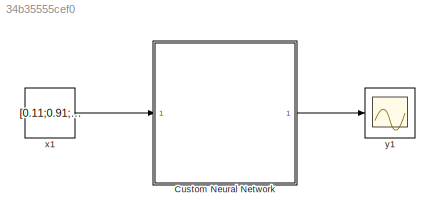
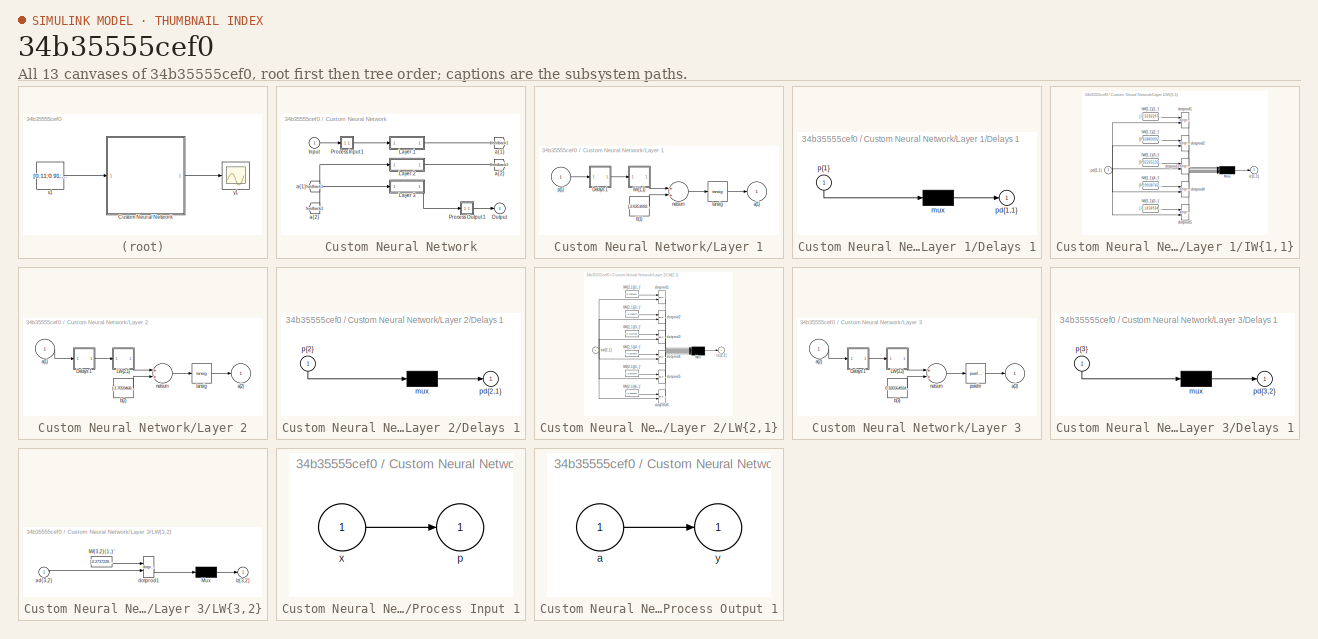
[diagram: thumbnail index - all 13 canvases of the model, root first then tree order]
MODEL slx_34b35555cef0
KIND model
CONFIG AbsTol = auto
CONFIG EnableMultiTasking = off
CONFIG FixedStep = auto
CONFIG MaxStep = auto
CONFIG MinStep = auto
CONFIG RelTol = 1e-3
CONFIG SampleTimeConstraint = Unconstrained
CONFIG Solver = VariableStepAuto
CONFIG SolverName = VariableStepAuto
CONFIG StartTime = 0.0
CONFIG StopTime = 10.0
BLOCK [SubSystem] Custom Neural Network
  Ports = [1, 1]
  RequestExecContextInheritance = off
  Variant = off
BLOCK [From] Custom Neural Network/ a{1} 
  GotoTag = feedback1
BLOCK [From] Custom Neural Network/ a{2} 
  GotoTag = feedback2
BLOCK [Inport] Custom Neural Network/Input
  IconDisplay = Port number
  PortDimensions = 6
BLOCK [SubSystem] Custom Neural Network/Layer 1
  Ports = [1, 1]
  RequestExecContextInheritance = off
  Variant = off
BLOCK [SubSystem] Custom Neural Network/Layer 1/Delays 1
  Ports = [1, 1]
  RequestExecContextInheritance = off
  Variant = off
BLOCK [Mux] Custom Neural Network/Layer 1/Delays 1/mux
  Inputs = 1
  Ports = [1, 1]
BLOCK [Outport] Custom Neural Network/Layer 1/Delays 1/pd{1,1}
  IconDisplay = Port number
BLOCK [Inport] Custom Neural Network/Layer 1/Delays 1/p{1}
  IconDisplay = Port number
  PortDimensions = 6
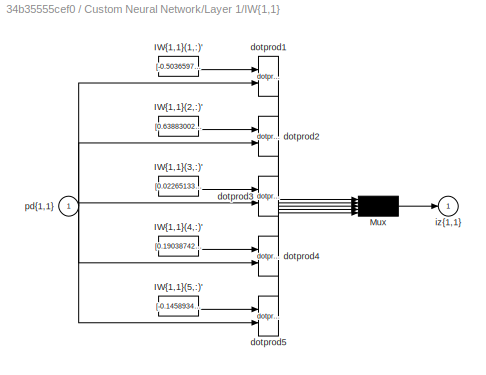
BLOCK [SubSystem] Custom Neural Network/Layer 1/IW{1,1}
  Ports = [1, 1]
  RequestExecContextInheritance = off
  Variant = off
BLOCK [Constant] Custom Neural Network/Layer 1/IW{1,1}/IW{1,1}(1,:)'
  Value = [-0.50365973031085708999654571016435511410236358642578125;-0.44861014762617223983198755377088673412799835205078125;-0.059355002935292507093567593301486340351402759552001953125;-0.65536268808816167119601914237136952579021453857421875;-0.014143780430035036987934660146493115462362766265869140625;0.7755281574015084888884530300856567919254302978515625]
BLOCK [Constant] Custom Neural Network/Layer 1/IW{1,1}/IW{1,1}(2,:)'
  Value = [0.63883002069801142486227263361797668039798736572265625;-0.416594461391983805764738235666300170123577117919921875;0.64442650384055000234440058193285949528217315673828125;2.171473302904118884981699011404998600482940673828125;0.57519324243376368510638485531671904027462005615234375;-2.780406223153573108675118419341742992401123046875]
BLOCK [Constant] Custom Neural Network/Layer 1/IW{1,1}/IW{1,1}(3,:)'
  Value = [0.022651336032712236778774439471817458979785442352294921875;0.18566070331072548338369188059004954993724822998046875;-0.11810670789982935513506845381925813853740692138671875;-3.13486104239137031157724777585826814174652099609375;5.53181866500369334715969671378843486309051513671875;-2.3993127850799407241311200778000056743621826171875]
BLOCK [Constant] Custom Neural Network/Layer 1/IW{1,1}/IW{1,1}(4,:)'
  Value = [0.1903874231777750447580643822220736183226108551025390625;0.82290543120227521711740337195806205272674560546875;-0.7692451539500242407854102566489018499851226806640625;3.0007304033344635030289282440207898616790771484375;-1.5737118742244522451301236287690699100494384765625;-1.453302964879054304248029438895173370838165283203125]
BLOCK [Constant] Custom Neural Network/Layer 1/IW{1,1}/IW{1,1}(5,:)'
  Value = [-0.1458934743004197398530408236183575354516506195068359375;-0.32857669610947082272645047851256094872951507568359375;-0.77789414662125844213136360849603079259395599365234375;1.966635708417143302284557648818008601665496826171875;0.2037568682339259973357314947861596010625362396240234375;-2.126583407465877595399206256843172013759613037109375]
BLOCK [Mux] Custom Neural Network/Layer 1/IW{1,1}/Mux
  Inputs = 5
  Ports = [5, 1]
BLOCK [Reference] Custom Neural Network/Layer 1/IW{1,1}/dotprod1  REF=neural/Weight Functions/dotprod
  Ports = [2, 1]
  SourceBlock = neural/Weight Functions/dotprod
  SourceProductBaseCode = NN
  SourceProductName = Neural Network Toolbox
  SourceType = DOTPROD
BLOCK [Reference] Custom Neural Network/Layer 1/IW{1,1}/dotprod2  REF=neural/Weight Functions/dotprod
  Ports = [2, 1]
  SourceBlock = neural/Weight Functions/dotprod
  SourceProductBaseCode = NN
  SourceProductName = Neural Network Toolbox
  SourceType = DOTPROD
BLOCK [Reference] Custom Neural Network/Layer 1/IW{1,1}/dotprod3  REF=neural/Weight Functions/dotprod
  Ports = [2, 1]
  SourceBlock = neural/Weight Functions/dotprod
  SourceProductBaseCode = NN
  SourceProductName = Neural Network Toolbox
  SourceType = DOTPROD
BLOCK [Reference] Custom Neural Network/Layer 1/IW{1,1}/dotprod4  REF=neural/Weight Functions/dotprod
  Ports = [2, 1]
  SourceBlock = neural/Weight Functions/dotprod
  SourceProductBaseCode = NN
  SourceProductName = Neural Network Toolbox
  SourceType = DOTPROD
BLOCK [Reference] Custom Neural Network/Layer 1/IW{1,1}/dotprod5  REF=neural/Weight Functions/dotprod
  Ports = [2, 1]
  SourceBlock = neural/Weight Functions/dotprod
  SourceProductBaseCode = NN
  SourceProductName = Neural Network Toolbox
  SourceType = DOTPROD
BLOCK [Outport] Custom Neural Network/Layer 1/IW{1,1}/iz{1,1}
  IconDisplay = Port number
BLOCK [Inport] Custom Neural Network/Layer 1/IW{1,1}/pd{1,1}
  IconDisplay = Port number
  PortDimensions = 6
BLOCK [Outport] Custom Neural Network/Layer 1/a{1}
  IconDisplay = Port number
  InitialOutput = [0;0;0;0;0]
BLOCK [Constant] Custom Neural Network/Layer 1/b{1}
  Value = [-2.635169255257659326474595218314789235591888427734375;-1.3710827763500590403822343432693742215633392333984375;0.137893074750585042931305679303477518260478973388671875;-0.524288182582832273936901401611976325511932373046875;1.744469183714269622242909463238902390003204345703125]
BLOCK [Sum] Custom Neural Network/Layer 1/netsum
  Inputs = 2
  Ports = [2, 1]
BLOCK [Inport] Custom Neural Network/Layer 1/p{1}
  IconDisplay = Port number
  PortDimensions = 6
BLOCK [Reference] Custom Neural Network/Layer 1/tansig  REF=neural/Transfer Functions/tansig
  Ports = [1, 1]
  SourceBlock = neural/Transfer Functions/tansig
  SourceProductBaseCode = NN
  SourceProductName = Neural Network Toolbox
  SourceType = TANSIG
BLOCK [SubSystem] Custom Neural Network/Layer 2
  Ports = [1, 1]
  RequestExecContextInheritance = off
  Variant = off
BLOCK [SubSystem] Custom Neural Network/Layer 2/Delays 1
  Ports = [1, 1]
  RequestExecContextInheritance = off
  Variant = off
BLOCK [Mux] Custom Neural Network/Layer 2/Delays 1/mux
  Inputs = 1
  Ports = [1, 1]
BLOCK [Outport] Custom Neural Network/Layer 2/Delays 1/pd{2,1}
  IconDisplay = Port number
BLOCK [Inport] Custom Neural Network/Layer 2/Delays 1/p{2}
  IconDisplay = Port number
  PortDimensions = 5
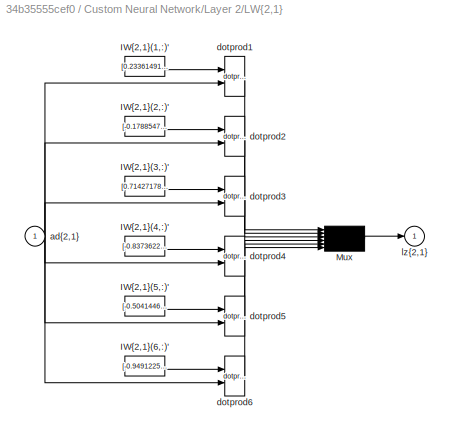
BLOCK [SubSystem] Custom Neural Network/Layer 2/LW{2,1}
  Ports = [1, 1]
  RequestExecContextInheritance = off
  Variant = off
BLOCK [Constant] Custom Neural Network/Layer 2/LW{2,1}/IW{2,1}(1,:)'
  Value = [0.2336149153648074683342628077298286370933055877685546875;1.224802888821991952994494567974470555782318115234375;-0.992381735804032327763479770510457456111907958984375;0.7451502207449027803676244730013422667980194091796875;0.404210585669535049646583502180874347686767578125]
BLOCK [Constant] Custom Neural Network/Layer 2/LW{2,1}/IW{2,1}(2,:)'
  Value = [-0.1788547726314411168146989439264871180057525634765625;-2.5348734418200518092589845764450728893280029296875;0.49593053797588149134156765285297296941280364990234375;-1.2524588518597525865772013276000507175922393798828125;-2.206701611793066231115290065645240247249603271484375]
BLOCK [Constant] Custom Neural Network/Layer 2/LW{2,1}/IW{2,1}(3,:)'
  Value = [0.71427178997836893170614303016918711364269256591796875;-1.747334441057413645381757305585779249668121337890625;5.7680701143208494841019273735582828521728515625;-0.67622368372496310939823160879313945770263671875;-1.293614173774741527012110964278690516948699951171875]
BLOCK [Constant] Custom Neural Network/Layer 2/LW{2,1}/IW{2,1}(4,:)'
  Value = [-0.837362276487662260393562974059022963047027587890625;0.64517490017483269948428414863883517682552337646484375;3.6133930627102071042600073269568383693695068359375;-0.91670860461676551000920198930543847382068634033203125;-0.74318293373677357660511688663973473012447357177734375]
BLOCK [Constant] Custom Neural Network/Layer 2/LW{2,1}/IW{2,1}(5,:)'
  Value = [-0.50414469863516242487122553939116187393665313720703125;0.5631832266314857893263479127199389040470123291015625;-1.3273230193330574078203198951086960732936859130859375;-0.42561953799763829753288746360340155661106109619140625;-1.423502257250669256194441913976334035396575927734375]
BLOCK [Constant] Custom Neural Network/Layer 2/LW{2,1}/IW{2,1}(6,:)'
  Value = [-0.94912259797203091249429007802973501384258270263671875;0.93335539915912402175734996490064077079296112060546875;1.02021678370102097943572516669519245624542236328125;-1.41026637952791134011931717395782470703125;-0.38799819414625991154110806746757589280605316162109375]
BLOCK [Mux] Custom Neural Network/Layer 2/LW{2,1}/Mux
  Inputs = 6
  Ports = [6, 1]
BLOCK [Inport] Custom Neural Network/Layer 2/LW{2,1}/ad{2,1}
  IconDisplay = Port number
  PortDimensions = 5
BLOCK [Reference] Custom Neural Network/Layer 2/LW{2,1}/dotprod1  REF=neural/Weight Functions/dotprod
  Ports = [2, 1]
  SourceBlock = neural/Weight Functions/dotprod
  SourceProductBaseCode = NN
  SourceProductName = Neural Network Toolbox
  SourceType = DOTPROD
BLOCK [Reference] Custom Neural Network/Layer 2/LW{2,1}/dotprod2  REF=neural/Weight Functions/dotprod
  Ports = [2, 1]
  SourceBlock = neural/Weight Functions/dotprod
  SourceProductBaseCode = NN
  SourceProductName = Neural Network Toolbox
  SourceType = DOTPROD
BLOCK [Reference] Custom Neural Network/Layer 2/LW{2,1}/dotprod3  REF=neural/Weight Functions/dotprod
  Ports = [2, 1]
  SourceBlock = neural/Weight Functions/dotprod
  SourceProductBaseCode = NN
  SourceProductName = Neural Network Toolbox
  SourceType = DOTPROD
BLOCK [Reference] Custom Neural Network/Layer 2/LW{2,1}/dotprod4  REF=neural/Weight Functions/dotprod
  Ports = [2, 1]
  SourceBlock = neural/Weight Functions/dotprod
  SourceProductBaseCode = NN
  SourceProductName = Neural Network Toolbox
  SourceType = DOTPROD
BLOCK [Reference] Custom Neural Network/Layer 2/LW{2,1}/dotprod5  REF=neural/Weight Functions/dotprod
  Ports = [2, 1]
  SourceBlock = neural/Weight Functions/dotprod
  SourceProductBaseCode = NN
  SourceProductName = Neural Network Toolbox
  SourceType = DOTPROD
BLOCK [Reference] Custom Neural Network/Layer 2/LW{2,1}/dotprod6  REF=neural/Weight Functions/dotprod
  Ports = [2, 1]
  SourceBlock = neural/Weight Functions/dotprod
  SourceProductBaseCode = NN
  SourceProductName = Neural Network Toolbox
  SourceType = DOTPROD
BLOCK [Outport] Custom Neural Network/Layer 2/LW{2,1}/lz{2,1}
  IconDisplay = Port number
BLOCK [Inport] Custom Neural Network/Layer 2/a{1} 
  IconDisplay = Port number
  PortDimensions = 5
BLOCK [Outport] Custom Neural Network/Layer 2/a{2}
  IconDisplay = Port number
  InitialOutput = [0;0;0;0;0;0]
BLOCK [Constant] Custom Neural Network/Layer 2/b{2}
  Value = [-1.7059468096578898066439933245419524610042572021484375;-0.385459224913381859334293721985886804759502410888671875;-1.5417913929411091178423021119670011103153228759765625;1.1146032162869079495948199109989218413829803466796875;-1.645597623874048398562308648251928389072418212890625;-2.40324958520407250261996523477137088775634765625]
BLOCK [Sum] Custom Neural Network/Layer 2/netsum
  Inputs = 2
  Ports = [2, 1]
BLOCK [Reference] Custom Neural Network/Layer 2/tansig  REF=neural/Transfer Functions/tansig
  Ports = [1, 1]
  SourceBlock = neural/Transfer Functions/tansig
  SourceProductBaseCode = NN
  SourceProductName = Neural Network Toolbox
  SourceType = TANSIG
BLOCK [SubSystem] Custom Neural Network/Layer 3
  Ports = [1, 1]
  RequestExecContextInheritance = off
  Variant = off
BLOCK [SubSystem] Custom Neural Network/Layer 3/Delays 1
  Ports = [1, 1]
  RequestExecContextInheritance = off
  Variant = off
BLOCK [Mux] Custom Neural Network/Layer 3/Delays 1/mux
  Inputs = 1
  Ports = [1, 1]
BLOCK [Outport] Custom Neural Network/Layer 3/Delays 1/pd{3,2}
  IconDisplay = Port number
BLOCK [Inport] Custom Neural Network/Layer 3/Delays 1/p{3}
  IconDisplay = Port number
  PortDimensions = 6
BLOCK [SubSystem] Custom Neural Network/Layer 3/LW{3,2}
  Ports = [1, 1]
  RequestExecContextInheritance = off
  Variant = off
BLOCK [Constant] Custom Neural Network/Layer 3/LW{3,2}/IW{3,2}(1,:)'
  Value = [-0.27372281229996564544393322648829780519008636474609375;-0.9301961994908818365246361281606368720531463623046875;4.26761954623348938042681766091845929622650146484375;2.940659299363556744566494671744294464588165283203125;0.64641321417596475651379250848549418151378631591796875;-0.74309735248830521836538309798925183713436126708984375]
BLOCK [Mux] Custom Neural Network/Layer 3/LW{3,2}/Mux
  Inputs = 1
  Ports = [1, 1]
BLOCK [Inport] Custom Neural Network/Layer 3/LW{3,2}/ad{3,2}
  IconDisplay = Port number
  PortDimensions = 6
BLOCK [Reference] Custom Neural Network/Layer 3/LW{3,2}/dotprod1  REF=neural/Weight Functions/dotprod
  Ports = [2, 1]
  SourceBlock = neural/Weight Functions/dotprod
  SourceProductBaseCode = NN
  SourceProductName = Neural Network Toolbox
  SourceType = DOTPROD
BLOCK [Outport] Custom Neural Network/Layer 3/LW{3,2}/lz{3,2}
  IconDisplay = Port number
BLOCK [Inport] Custom Neural Network/Layer 3/a{2} 
  IconDisplay = Port number
  PortDimensions = 6
BLOCK [Outport] Custom Neural Network/Layer 3/a{3}
  IconDisplay = Port number
  InitialOutput = 0
BLOCK [Constant] Custom Neural Network/Layer 3/b{3}
  Value = 0.326564924770569253720253755091107450425624847412109375
BLOCK [Sum] Custom Neural Network/Layer 3/netsum
  Inputs = 2
  Ports = [2, 1]
BLOCK [Reference] Custom Neural Network/Layer 3/purelin  REF=neural/Transfer Functions/purelin
  Ports = [1, 1]
  SourceBlock = neural/Transfer Functions/purelin
  SourceProductBaseCode = NN
  SourceProductName = Neural Network Toolbox
  SourceType = PURELIN
BLOCK [Outport] Custom Neural Network/Output
  IconDisplay = Port number
  InitialOutput = 0
BLOCK [SubSystem] Custom Neural Network/Process Input 1
  Ports = [1, 1]
  RequestExecContextInheritance = off
  Variant = off
BLOCK [Outport] Custom Neural Network/Process Input 1/p
  IconDisplay = Port number
  PortDimensions = 6
BLOCK [Inport] Custom Neural Network/Process Input 1/x
  IconDisplay = Port number
  PortDimensions = 6
BLOCK [SubSystem] Custom Neural Network/Process Output 1
  Ports = [1, 1]
  RequestExecContextInheritance = off
  Variant = off
BLOCK [Inport] Custom Neural Network/Process Output 1/a
  IconDisplay = Port number
  PortDimensions = 1
BLOCK [Outport] Custom Neural Network/Process Output 1/y
  IconDisplay = Port number
  PortDimensions = 1
BLOCK [Goto] Custom Neural Network/a{1}
  GotoTag = feedback1
BLOCK [Goto] Custom Neural Network/a{2}
  GotoTag = feedback2
BLOCK [Constant] x1
  SampleTime = 1
  Value = [0.11;0.91;0.88;0.82;0.26;0.59]
BLOCK [Scope] y1
  NumInputPorts = 1
  Ports = [1]
  ScopeSpecificationString = Simulink.scopes.TimeScopeBlockCfg('CurrentConfiguration', extmgr.ConfigurationSet(extmgr.Configuration('Core','General UI',true),extmgr.Configuration('Core','Source UI',true),extmgr.Configuration('Sources','WiredSimulink',true),extmgr.Configuration('Visuals','Time Domain',true,'SerializedDisplays',{struct('MinYLimReal','-6.66842','MaxYLimReal','-4.66842','YLabelReal','','MinYLimMag','0.00000','Max...<+1343ch>
LINE Custom Neural Network/ a{1} :1 -> Custom Neural Network/Layer 2:1
LINE Custom Neural Network/ a{2} :1 -> Custom Neural Network/Layer 3:1
LINE Custom Neural Network/Input:1 -> Custom Neural Network/Process Input 1:1
LINE Custom Neural Network/Layer 1/Delays 1/mux:1 -> Custom Neural Network/Layer 1/Delays 1/pd{1,1}:1
LINE Custom Neural Network/Layer 1/Delays 1/p{1}:1 -> Custom Neural Network/Layer 1/Delays 1/mux:1
LINE Custom Neural Network/Layer 1/Delays 1:1 -> Custom Neural Network/Layer 1/IW{1,1}:1
LINE Custom Neural Network/Layer 1/IW{1,1}/IW{1,1}(1,:)':1 -> Custom Neural Network/Layer 1/IW{1,1}/dotprod1:1
LINE Custom Neural Network/Layer 1/IW{1,1}/IW{1,1}(2,:)':1 -> Custom Neural Network/Layer 1/IW{1,1}/dotprod2:1
LINE Custom Neural Network/Layer 1/IW{1,1}/IW{1,1}(3,:)':1 -> Custom Neural Network/Layer 1/IW{1,1}/dotprod3:1
LINE Custom Neural Network/Layer 1/IW{1,1}/IW{1,1}(4,:)':1 -> Custom Neural Network/Layer 1/IW{1,1}/dotprod4:1
LINE Custom Neural Network/Layer 1/IW{1,1}/IW{1,1}(5,:)':1 -> Custom Neural Network/Layer 1/IW{1,1}/dotprod5:1
LINE Custom Neural Network/Layer 1/IW{1,1}/Mux:1 -> Custom Neural Network/Layer 1/IW{1,1}/iz{1,1}:1
LINE Custom Neural Network/Layer 1/IW{1,1}/dotprod1:1 -> Custom Neural Network/Layer 1/IW{1,1}/Mux:1
LINE Custom Neural Network/Layer 1/IW{1,1}/dotprod2:1 -> Custom Neural Network/Layer 1/IW{1,1}/Mux:2
LINE Custom Neural Network/Layer 1/IW{1,1}/dotprod3:1 -> Custom Neural Network/Layer 1/IW{1,1}/Mux:3
LINE Custom Neural Network/Layer 1/IW{1,1}/dotprod4:1 -> Custom Neural Network/Layer 1/IW{1,1}/Mux:4
LINE Custom Neural Network/Layer 1/IW{1,1}/dotprod5:1 -> Custom Neural Network/Layer 1/IW{1,1}/Mux:5
NET Custom Neural Network/Layer 1/IW{1,1}/pd{1,1}:1 -> Custom Neural Network/Layer 1/IW{1,1}/dotprod1:2, Custom Neural Network/Layer 1/IW{1,1}/dotprod2:2, Custom Neural Network/Layer 1/IW{1,1}/dotprod3:2, Custom Neural Network/Layer 1/IW{1,1}/dotprod4:2, Custom Neural Network/Layer 1/IW{1,1}/dotprod5:2
LINE Custom Neural Network/Layer 1/IW{1,1}:1 -> Custom Neural Network/Layer 1/netsum:1
LINE Custom Neural Network/Layer 1/b{1}:1 -> Custom Neural Network/Layer 1/netsum:2
LINE Custom Neural Network/Layer 1/netsum:1 -> Custom Neural Network/Layer 1/tansig:1
LINE Custom Neural Network/Layer 1/p{1}:1 -> Custom Neural Network/Layer 1/Delays 1:1
LINE Custom Neural Network/Layer 1/tansig:1 -> Custom Neural Network/Layer 1/a{1}:1
LINE Custom Neural Network/Layer 1:1 -> Custom Neural Network/a{1}:1
LINE Custom Neural Network/Layer 2/Delays 1/mux:1 -> Custom Neural Network/Layer 2/Delays 1/pd{2,1}:1
LINE Custom Neural Network/Layer 2/Delays 1/p{2}:1 -> Custom Neural Network/Layer 2/Delays 1/mux:1
LINE Custom Neural Network/Layer 2/Delays 1:1 -> Custom Neural Network/Layer 2/LW{2,1}:1
LINE Custom Neural Network/Layer 2/LW{2,1}/IW{2,1}(1,:)':1 -> Custom Neural Network/Layer 2/LW{2,1}/dotprod1:1
LINE Custom Neural Network/Layer 2/LW{2,1}/IW{2,1}(2,:)':1 -> Custom Neural Network/Layer 2/LW{2,1}/dotprod2:1
LINE Custom Neural Network/Layer 2/LW{2,1}/IW{2,1}(3,:)':1 -> Custom Neural Network/Layer 2/LW{2,1}/dotprod3:1
LINE Custom Neural Network/Layer 2/LW{2,1}/IW{2,1}(4,:)':1 -> Custom Neural Network/Layer 2/LW{2,1}/dotprod4:1
LINE Custom Neural Network/Layer 2/LW{2,1}/IW{2,1}(5,:)':1 -> Custom Neural Network/Layer 2/LW{2,1}/dotprod5:1
LINE Custom Neural Network/Layer 2/LW{2,1}/IW{2,1}(6,:)':1 -> Custom Neural Network/Layer 2/LW{2,1}/dotprod6:1
LINE Custom Neural Network/Layer 2/LW{2,1}/Mux:1 -> Custom Neural Network/Layer 2/LW{2,1}/lz{2,1}:1
NET Custom Neural Network/Layer 2/LW{2,1}/ad{2,1}:1 -> Custom Neural Network/Layer 2/LW{2,1}/dotprod1:2, Custom Neural Network/Layer 2/LW{2,1}/dotprod2:2, Custom Neural Network/Layer 2/LW{2,1}/dotprod3:2, Custom Neural Network/Layer 2/LW{2,1}/dotprod4:2, Custom Neural Network/Layer 2/LW{2,1}/dotprod5:2, Custom Neural Network/Layer 2/LW{2,1}/dotprod6:2
LINE Custom Neural Network/Layer 2/LW{2,1}/dotprod1:1 -> Custom Neural Network/Layer 2/LW{2,1}/Mux:1
LINE Custom Neural Network/Layer 2/LW{2,1}/dotprod2:1 -> Custom Neural Network/Layer 2/LW{2,1}/Mux:2
LINE Custom Neural Network/Layer 2/LW{2,1}/dotprod3:1 -> Custom Neural Network/Layer 2/LW{2,1}/Mux:3
LINE Custom Neural Network/Layer 2/LW{2,1}/dotprod4:1 -> Custom Neural Network/Layer 2/LW{2,1}/Mux:4
LINE Custom Neural Network/Layer 2/LW{2,1}/dotprod5:1 -> Custom Neural Network/Layer 2/LW{2,1}/Mux:5
LINE Custom Neural Network/Layer 2/LW{2,1}/dotprod6:1 -> Custom Neural Network/Layer 2/LW{2,1}/Mux:6
LINE Custom Neural Network/Layer 2/LW{2,1}:1 -> Custom Neural Network/Layer 2/netsum:1
LINE Custom Neural Network/Layer 2/a{1} :1 -> Custom Neural Network/Layer 2/Delays 1:1
LINE Custom Neural Network/Layer 2/b{2}:1 -> Custom Neural Network/Layer 2/netsum:2
LINE Custom Neural Network/Layer 2/netsum:1 -> Custom Neural Network/Layer 2/tansig:1
LINE Custom Neural Network/Layer 2/tansig:1 -> Custom Neural Network/Layer 2/a{2}:1
LINE Custom Neural Network/Layer 2:1 -> Custom Neural Network/a{2}:1
LINE Custom Neural Network/Layer 3/Delays 1/mux:1 -> Custom Neural Network/Layer 3/Delays 1/pd{3,2}:1
LINE Custom Neural Network/Layer 3/Delays 1/p{3}:1 -> Custom Neural Network/Layer 3/Delays 1/mux:1
LINE Custom Neural Network/Layer 3/Delays 1:1 -> Custom Neural Network/Layer 3/LW{3,2}:1
LINE Custom Neural Network/Layer 3/LW{3,2}/IW{3,2}(1,:)':1 -> Custom Neural Network/Layer 3/LW{3,2}/dotprod1:1
LINE Custom Neural Network/Layer 3/LW{3,2}/Mux:1 -> Custom Neural Network/Layer 3/LW{3,2}/lz{3,2}:1
LINE Custom Neural Network/Layer 3/LW{3,2}/ad{3,2}:1 -> Custom Neural Network/Layer 3/LW{3,2}/dotprod1:2
LINE Custom Neural Network/Layer 3/LW{3,2}/dotprod1:1 -> Custom Neural Network/Layer 3/LW{3,2}/Mux:1
LINE Custom Neural Network/Layer 3/LW{3,2}:1 -> Custom Neural Network/Layer 3/netsum:1
LINE Custom Neural Network/Layer 3/a{2} :1 -> Custom Neural Network/Layer 3/Delays 1:1
LINE Custom Neural Network/Layer 3/b{3}:1 -> Custom Neural Network/Layer 3/netsum:2
LINE Custom Neural Network/Layer 3/netsum:1 -> Custom Neural Network/Layer 3/purelin:1
LINE Custom Neural Network/Layer 3/purelin:1 -> Custom Neural Network/Layer 3/a{3}:1
LINE Custom Neural Network/Layer 3:1 -> Custom Neural Network/Process Output 1:1
LINE Custom Neural Network/Process Input 1/x:1 -> Custom Neural Network/Process Input 1/p:1
LINE Custom Neural Network/Process Input 1:1 -> Custom Neural Network/Layer 1:1
LINE Custom Neural Network/Process Output 1/a:1 -> Custom Neural Network/Process Output 1/y:1
LINE Custom Neural Network/Process Output 1:1 -> Custom Neural Network/Output:1
LINE Custom Neural Network:1 -> y1:1
LINE x1:1 -> Custom Neural Network:1
note: NET lines group one-source signal fan-out (src -> all destinations, sorted); 1:1 wires keep LINE
